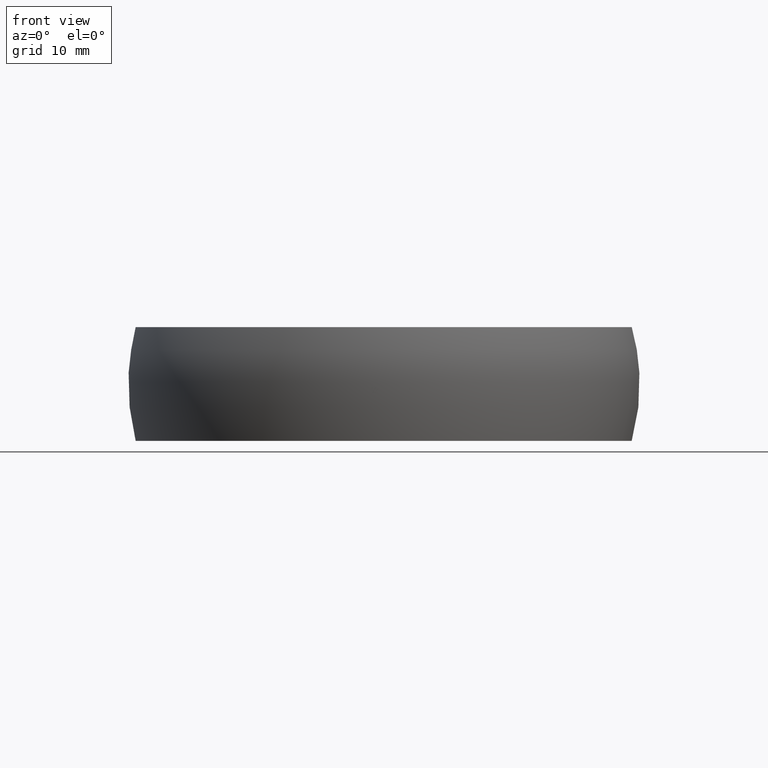
[diagram: clean part render]
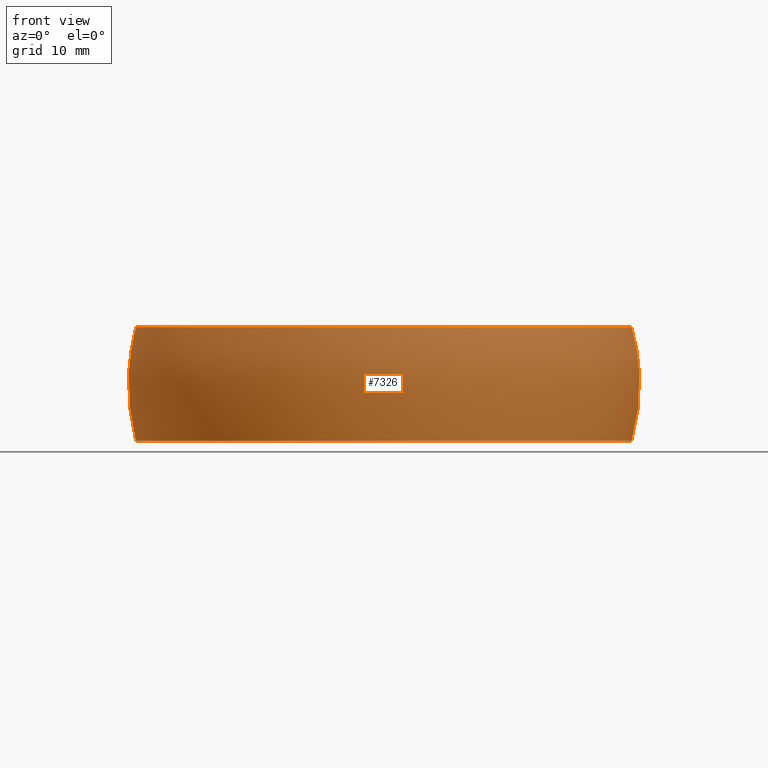
[diagram: same view with one face highlighted and labeled with its STEP entity id]
A machine part, front view. The second image highlights one B-rep face of the part: STEP entity #7326.
In plain terms, the highlighted toroidal blend (fillet) surface has major radius 4.2929 mm and minor (blend) radius 18.2071 mm.
Its self-contained STEP definition (entity closure, byte-faithful):
#215 = DIRECTION ( 'NONE',  ( -0.0000000000000000000, -0.0000000000000000000, 1.000000000000000000 ) ) ;
#320 = AXIS2_PLACEMENT_3D ( 'NONE', #7349, #1526, #4389 ) ;
#523 = CARTESIAN_POINT ( 'NONE',  ( 21.80000000000000100, 0.0000000000000000000, -5.000000000000000000 ) ) ;
#590 = EDGE_CURVE ( 'NONE', #5986, #5986, #1684, .T. ) ;
#1074 = DIRECTION ( 'NONE',  ( 1.000000000000000000, 0.0000000000000000000, 0.0000000000000000000 ) ) ;
#1086 = EDGE_LOOP ( 'NONE', ( #1400 ) ) ;
#1215 = DIRECTION ( 'NONE',  ( 1.000000000000000000, 0.0000000000000000000, 0.0000000000000000000 ) ) ;
#1400 = ORIENTED_EDGE ( 'NONE', *, *, #590, .T. ) ;
#1526 = DIRECTION ( 'NONE',  ( -0.0000000000000000000, -0.0000000000000000000, 1.000000000000000000 ) ) ;
#1684 = CIRCLE ( 'NONE', #2280, 21.80000000000000100 ) ;
#1902 = CIRCLE ( 'NONE', #320, 21.80000000000000100 ) ;
#2054 = FACE_OUTER_BOUND ( 'NONE', #1086, .T. ) ;
#2173 = VERTEX_POINT ( 'NONE', #2485 ) ;
#2280 = AXIS2_PLACEMENT_3D ( 'NONE', #7033, #215, #1215 ) ;
#2485 = CARTESIAN_POINT ( 'NONE',  ( 21.80000000000000100, 0.0000000000000000000, 5.000000000000000900 ) ) ;
#2695 = ORIENTED_EDGE ( 'NONE', *, *, #7792, .F. ) ;
#3739 = TOROIDAL_SURFACE ( 'NONE', #5597, 4.292857142857122300, 18.20714285714287700 ) ;
#3933 = DIRECTION ( 'NONE',  ( -0.0000000000000000000, -0.0000000000000000000, 1.000000000000000000 ) ) ;
#3999 = EDGE_LOOP ( 'NONE', ( #2695 ) ) ;
#4389 = DIRECTION ( 'NONE',  ( 1.000000000000000000, 0.0000000000000000000, 0.0000000000000000000 ) ) ;
#5597 = AXIS2_PLACEMENT_3D ( 'NONE', #11754, #3933, #1074 ) ;
#5986 = VERTEX_POINT ( 'NONE', #523 ) ;
#7033 = CARTESIAN_POINT ( 'NONE',  ( 0.0000000000000000000, 0.0000000000000000000, -5.000000000000000000 ) ) ;
#7326 = ADVANCED_FACE ( 'NONE', ( #11121, #2054 ), #3739, .T. ) ;
#7349 = CARTESIAN_POINT ( 'NONE',  ( 0.0000000000000000000, 0.0000000000000000000, 5.000000000000000900 ) ) ;
#7792 = EDGE_CURVE ( 'NONE', #2173, #2173, #1902, .T. ) ;
#11121 = FACE_OUTER_BOUND ( 'NONE', #3999, .T. ) ;
#11754 = CARTESIAN_POINT ( 'NONE',  ( 0.0000000000000000000, 0.0000000000000000000, 0.0000000000000000000 ) ) ;